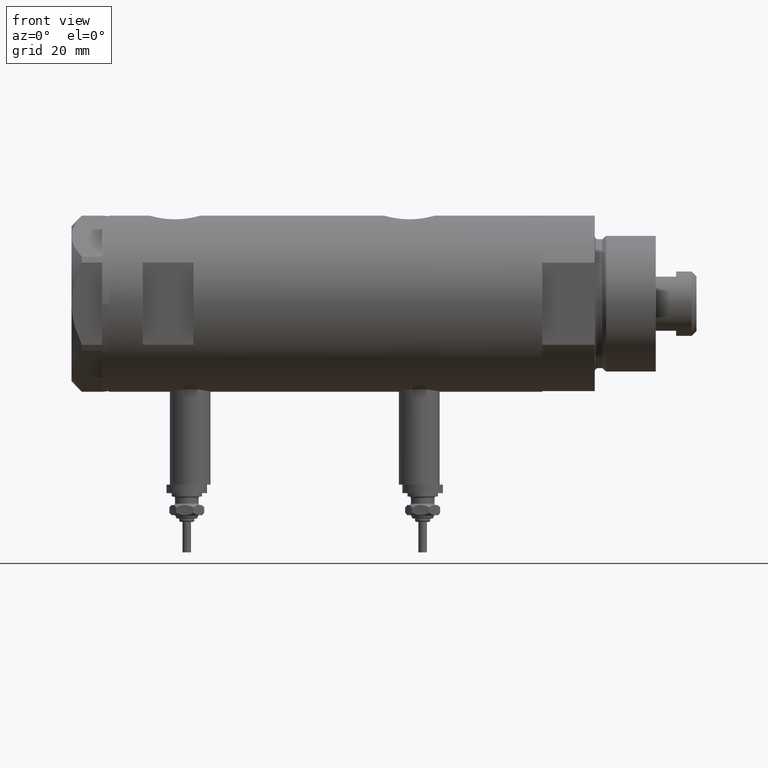
[diagram: clean part render]
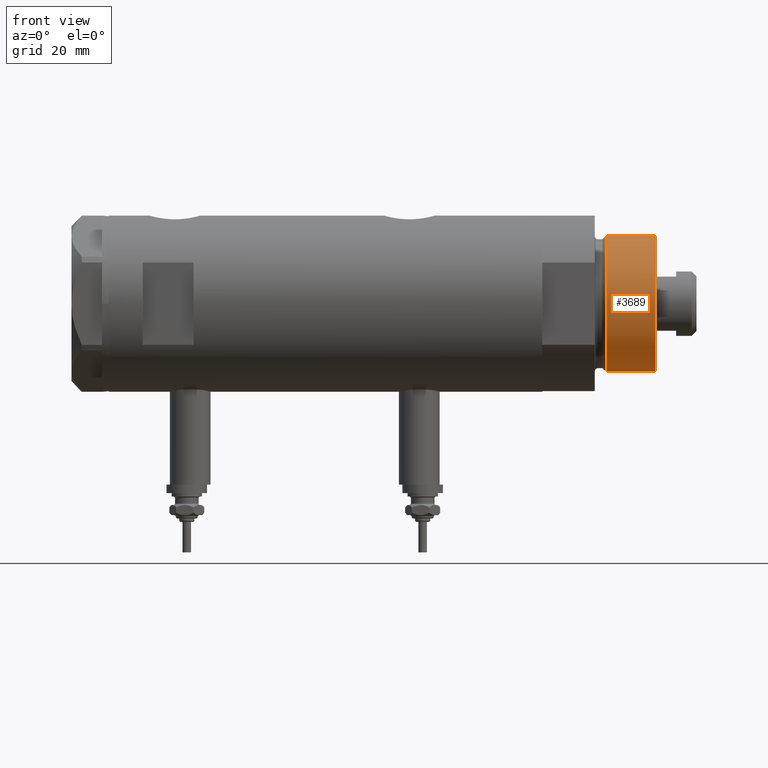
[diagram: same view with one face highlighted and labeled with its STEP entity id]
A machine part, front view. The second image highlights one B-rep face of the part: STEP entity #3689.
In plain terms, the highlighted cylindrical surface (partial cylindrical patch) has radius 20 mm, axis along (-1, -0, 0).
Its self-contained STEP definition (entity closure, byte-faithful):
#120 = VERTEX_POINT ( 'NONE', #4108 ) ;
#680 = EDGE_CURVE ( 'NONE', #120, #5406, #2482, .T. ) ;
#980 = ORIENTED_EDGE ( 'NONE', *, *, #1309, .T. ) ;
#1085 = DIRECTION ( 'NONE',  ( -0.000000000000000000, -0.000000000000000000, 1.000000000000000000 ) ) ;
#1136 = CARTESIAN_POINT ( 'NONE',  ( 0.000000000000000000, 0.000000000000000000, 18.87384048104053846 ) ) ;
#1145 = AXIS2_PLACEMENT_3D ( 'NONE', #1365, #5799, #4297 ) ;
#1180 = CIRCLE ( 'NONE', #3222, 19.99999999999999645 ) ;
#1299 = CARTESIAN_POINT ( 'NONE',  ( -19.99999999999999645, 0.000000000000000000, 18.87384048104053846 ) ) ;
#1309 = EDGE_CURVE ( 'NONE', #6065, #3677, #5570, .T. ) ;
#1365 = CARTESIAN_POINT ( 'NONE',  ( 0.000000000000000000, 0.000000000000000000, 33.50000000000000000 ) ) ;
#2237 = EDGE_CURVE ( 'NONE', #6065, #120, #1180, .T. ) ;
#2482 = LINE ( 'NONE', #4426, #6176 ) ;
#2569 = EDGE_CURVE ( 'NONE', #3677, #5406, #5274, .T. ) ;
#2819 = VECTOR ( 'NONE', #3065, 1000.000000000000000 ) ;
#2879 = ORIENTED_EDGE ( 'NONE', *, *, #2569, .T. ) ;
#3065 = DIRECTION ( 'NONE',  ( -0.000000000000000000, -0.000000000000000000, -1.000000000000000000 ) ) ;
#3201 = DIRECTION ( 'NONE',  ( 1.000000000000000000, 0.000000000000000000, 0.000000000000000000 ) ) ;
#3222 = AXIS2_PLACEMENT_3D ( 'NONE', #5612, #5138, #3201 ) ;
#3256 = FACE_OUTER_BOUND ( 'NONE', #5097, .T. ) ;
#3677 = VERTEX_POINT ( 'NONE', #1299 ) ;
#3689 = ADVANCED_FACE ( 'NONE', ( #3256 ), #5698, .T. ) ;
#3813 = CARTESIAN_POINT ( 'NONE',  ( -19.99999999999999645, 0.000000000000000000, 33.50000000000000000 ) ) ;
#3960 = CARTESIAN_POINT ( 'NONE',  ( 19.99999999999999645, 2.449293598294706119E-15, 18.87384048104053846 ) ) ;
#4018 = CARTESIAN_POINT ( 'NONE',  ( -19.99999999999999645, 0.000000000000000000, 33.50000000000000000 ) ) ;
#4108 = CARTESIAN_POINT ( 'NONE',  ( 19.99999999999999645, 2.449293598294706119E-15, 33.50000000000000000 ) ) ;
#4297 = DIRECTION ( 'NONE',  ( -1.000000000000000000, 0.000000000000000000, 0.000000000000000000 ) ) ;
#4426 = CARTESIAN_POINT ( 'NONE',  ( 19.99999999999999645, 2.449293598294706119E-15, 33.50000000000000000 ) ) ;
#4760 = ORIENTED_EDGE ( 'NONE', *, *, #680, .F. ) ;
#4875 = DIRECTION ( 'NONE',  ( -0.000000000000000000, -0.000000000000000000, -1.000000000000000000 ) ) ;
#5097 = EDGE_LOOP ( 'NONE', ( #4760, #5104, #980, #2879 ) ) ;
#5104 = ORIENTED_EDGE ( 'NONE', *, *, #2237, .F. ) ;
#5138 = DIRECTION ( 'NONE',  ( 0.000000000000000000, 0.000000000000000000, 1.000000000000000000 ) ) ;
#5169 = AXIS2_PLACEMENT_3D ( 'NONE', #1136, #1085, #5537 ) ;
#5274 = CIRCLE ( 'NONE', #5169, 19.99999999999999645 ) ;
#5406 = VERTEX_POINT ( 'NONE', #3960 ) ;
#5537 = DIRECTION ( 'NONE',  ( 1.000000000000000000, 0.000000000000000000, 0.000000000000000000 ) ) ;
#5570 = LINE ( 'NONE', #4018, #2819 ) ;
#5612 = CARTESIAN_POINT ( 'NONE',  ( 0.000000000000000000, 0.000000000000000000, 33.50000000000000000 ) ) ;
#5698 = CYLINDRICAL_SURFACE ( 'NONE', #1145, 19.99999999999999645 ) ;
#5799 = DIRECTION ( 'NONE',  ( -0.000000000000000000, -0.000000000000000000, -1.000000000000000000 ) ) ;
#6065 = VERTEX_POINT ( 'NONE', #3813 ) ;
#6176 = VECTOR ( 'NONE', #4875, 1000.000000000000000 ) ;